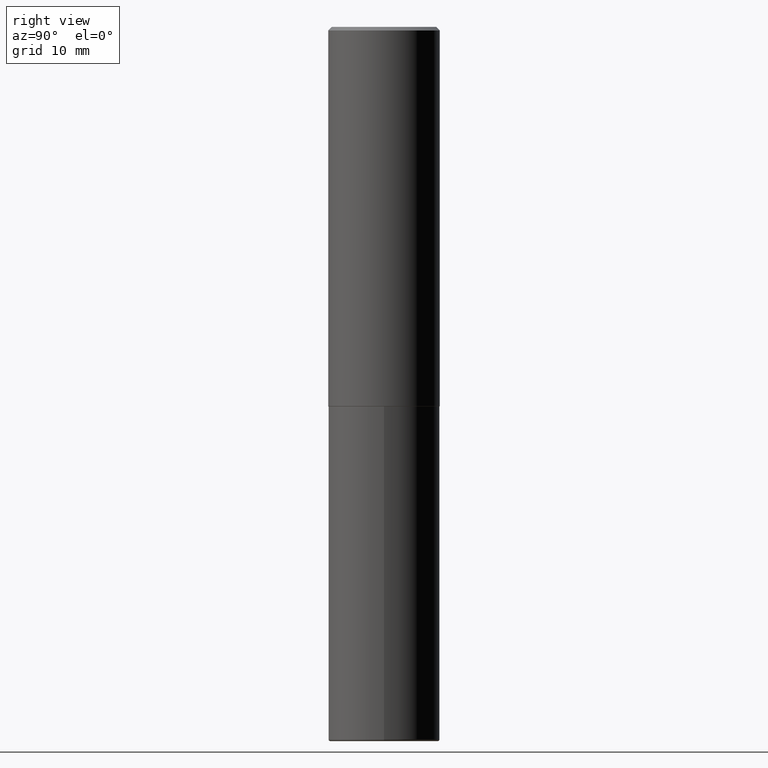
[diagram: clean part render]
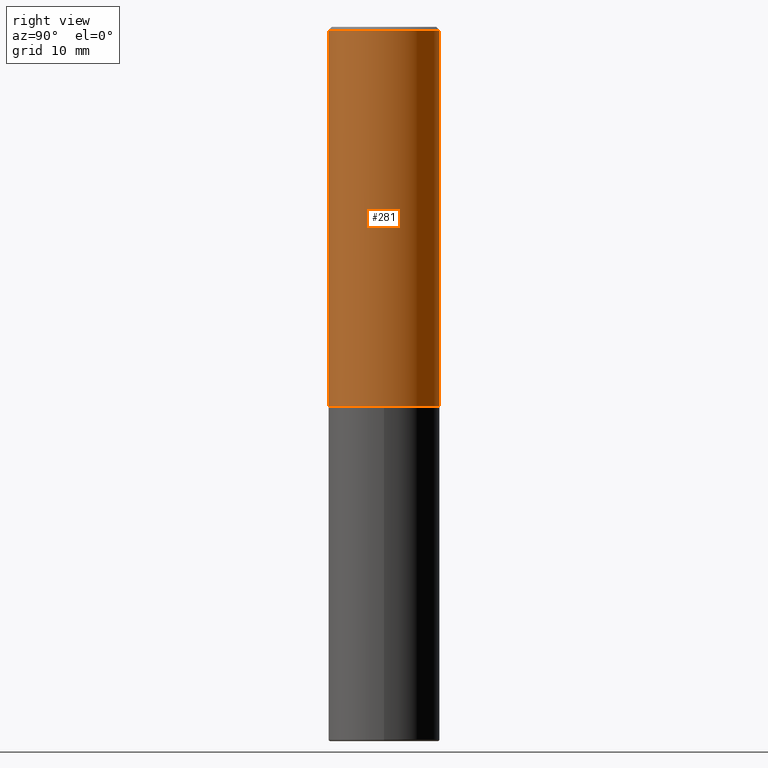
[diagram: same view with one face highlighted and labeled with its STEP entity id]
A machine part, right view. The second image highlights one B-rep face of the part: STEP entity #281.
In plain terms, the highlighted cylindrical surface (partial cylindrical patch) has radius 7.9375 mm, axis along (-0, 0, 1).
Its self-contained STEP definition (entity closure, byte-faithful):
#12 = CARTESIAN_POINT ( 'NONE',  ( -2.143905624303602824E-15, -0.3125000000000000555, -0.01999999999999897693 ) ) ;
#14 = DIRECTION ( 'NONE',  ( -6.982962677686265133E-15, -1.000000000000000000, 3.496765431890256920E-15 ) ) ;
#25 = CARTESIAN_POINT ( 'NONE',  ( 2.182175836776958741E-15, 0.3124999999999999445, -0.02000000000000116268 ) ) ;
#32 = DIRECTION ( 'NONE',  ( -2.444852431726452894E-29, 3.492364022149836358E-15, 1.000000000000000000 ) ) ;
#35 = AXIS2_PLACEMENT_3D ( 'NONE', #42, #369, #70 ) ;
#39 = LINE ( 'NONE', #194, #415 ) ;
#42 = CARTESIAN_POINT ( 'NONE',  ( 0.000000000000000000, 0.000000000000000000, 0.000000000000000000 ) ) ;
#45 = AXIS2_PLACEMENT_3D ( 'NONE', #329, #32, #154 ) ;
#70 = DIRECTION ( 'NONE',  ( -6.982962677686265133E-15, -1.000000000000000000, 3.492364022149836358E-15 ) ) ;
#71 = LINE ( 'NONE', #401, #115 ) ;
#73 = EDGE_LOOP ( 'NONE', ( #319, #246, #260, #136 ) ) ;
#94 = AXIS2_PLACEMENT_3D ( 'NONE', #301, #183, #14 ) ;
#98 = CIRCLE ( 'NONE', #45, 0.3125000000000002776 ) ;
#102 = VERTEX_POINT ( 'NONE', #291 ) ;
#107 = VERTEX_POINT ( 'NONE', #25 ) ;
#115 = VECTOR ( 'NONE', #198, 39.37007874015748143 ) ;
#129 = CYLINDRICAL_SURFACE ( 'NONE', #35, 0.3125000000000001665 ) ;
#134 = EDGE_CURVE ( 'NONE', #252, #102, #98, .T. ) ;
#136 = ORIENTED_EDGE ( 'NONE', *, *, #372, .F. ) ;
#154 = DIRECTION ( 'NONE',  ( -6.982962677686265922E-15, -1.000000000000000000, 3.496765431890253764E-15 ) ) ;
#183 = DIRECTION ( 'NONE',  ( -2.444852431726452894E-29, 3.492364022149836358E-15, 1.000000000000000000 ) ) ;
#185 = VERTEX_POINT ( 'NONE', #12 ) ;
#194 = CARTESIAN_POINT ( 'NONE',  ( 2.220446049250313475E-15, 0.3125000000000001665, -1.091363756921824478E-15 ) ) ;
#198 = DIRECTION ( 'NONE',  ( -2.444852431726452614E-29, 3.492364022149836358E-15, 1.000000000000000000 ) ) ;
#218 = CARTESIAN_POINT ( 'NONE',  ( -2.182175836776908254E-15, -0.3125000000000077161, -2.123999999999998334 ) ) ;
#235 = FACE_OUTER_BOUND ( 'NONE', #73, .T. ) ;
#241 = CIRCLE ( 'NONE', #94, 0.3125000000000000000 ) ;
#246 = ORIENTED_EDGE ( 'NONE', *, *, #370, .T. ) ;
#252 = VERTEX_POINT ( 'NONE', #218 ) ;
#260 = ORIENTED_EDGE ( 'NONE', *, *, #412, .F. ) ;
#272 = DIRECTION ( 'NONE',  ( -2.444852431726452614E-29, 3.492364022149836358E-15, 1.000000000000000000 ) ) ;
#281 = ADVANCED_FACE ( 'NONE', ( #235 ), #129, .T. ) ;
#291 = CARTESIAN_POINT ( 'NONE',  ( 2.220446049250340297E-15, 0.3124999999999928391, -2.124000000000000554 ) ) ;
#301 = CARTESIAN_POINT ( 'NONE',  ( 4.889704863452922148E-31, -6.984728044299695791E-17, -0.02000000000000006981 ) ) ;
#319 = ORIENTED_EDGE ( 'NONE', *, *, #134, .T. ) ;
#329 = CARTESIAN_POINT ( 'NONE',  ( 5.192866564986985411E-29, -7.417781183046251262E-15, -2.123999999999999666 ) ) ;
#369 = DIRECTION ( 'NONE',  ( -2.444852431726452894E-29, 3.492364022149836358E-15, 1.000000000000000000 ) ) ;
#370 = EDGE_CURVE ( 'NONE', #102, #107, #39, .T. ) ;
#372 = EDGE_CURVE ( 'NONE', #252, #185, #71, .T. ) ;
#401 = CARTESIAN_POINT ( 'NONE',  ( -2.182175836776959136E-15, -0.3125000000000001665, 1.091363756921824478E-15 ) ) ;
#412 = EDGE_CURVE ( 'NONE', #185, #107, #241, .T. ) ;
#415 = VECTOR ( 'NONE', #272, 39.37007874015748143 ) ;